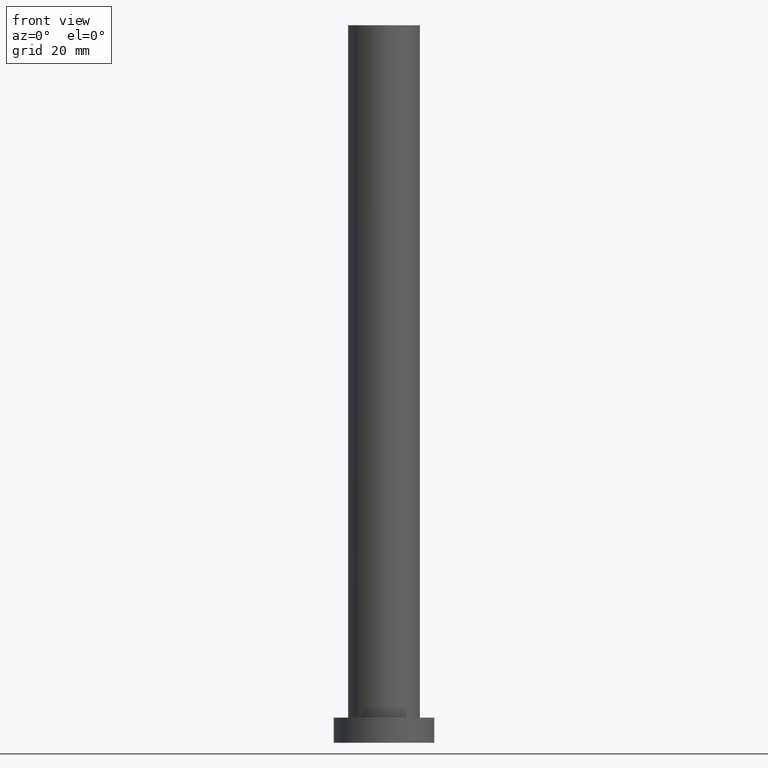
[diagram: clean part render]
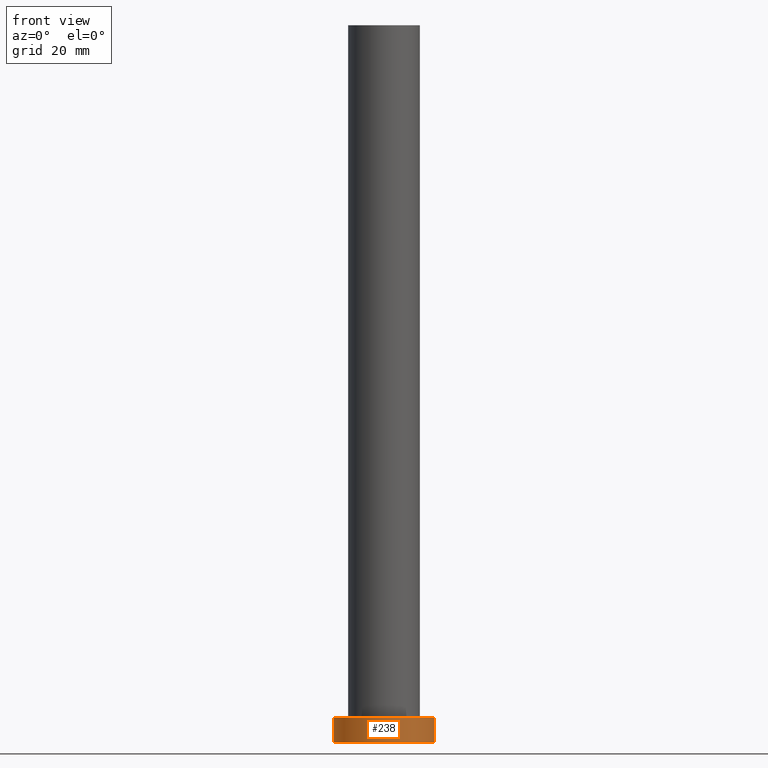
[diagram: same view with one face highlighted and labeled with its STEP entity id]
A machine part, front view. The second image highlights one B-rep face of the part: STEP entity #238.
In plain terms, the highlighted cylindrical surface (partial cylindrical patch) has radius 14 mm, axis along (-0, -0, -1).
Its self-contained STEP definition (entity closure, byte-faithful):
#20 = VERTEX_POINT ( 'NONE', #244 ) ;
#22 = LINE ( 'NONE', #208, #146 ) ;
#38 = EDGE_CURVE ( 'NONE', #143, #90, #127, .T. ) ;
#48 = CYLINDRICAL_SURFACE ( 'NONE', #194, 14.00000000000000000 ) ;
#57 = CARTESIAN_POINT ( 'NONE',  ( 14.00000000000000000, 1.714505518806294638E-15, 0.000000000000000000 ) ) ;
#62 = DIRECTION ( 'NONE',  ( -0.000000000000000000, -0.000000000000000000, -1.000000000000000000 ) ) ;
#67 = AXIS2_PLACEMENT_3D ( 'NONE', #223, #162, #210 ) ;
#77 = CARTESIAN_POINT ( 'NONE',  ( 14.00000000000000000, 1.714505518806294638E-15, 7.000000000000000000 ) ) ;
#81 = LINE ( 'NONE', #242, #85 ) ;
#85 = VECTOR ( 'NONE', #181, 1000.000000000000000 ) ;
#90 = VERTEX_POINT ( 'NONE', #57 ) ;
#99 = DIRECTION ( 'NONE',  ( 0.000000000000000000, 0.000000000000000000, 1.000000000000000000 ) ) ;
#104 = EDGE_CURVE ( 'NONE', #20, #143, #22, .T. ) ;
#112 = VERTEX_POINT ( 'NONE', #77 ) ;
#115 = CARTESIAN_POINT ( 'NONE',  ( -14.00000000000000000, 0.000000000000000000, 0.000000000000000000 ) ) ;
#122 = EDGE_CURVE ( 'NONE', #112, #90, #81, .T. ) ;
#125 = ORIENTED_EDGE ( 'NONE', *, *, #104, .T. ) ;
#127 = CIRCLE ( 'NONE', #164, 14.00000000000000000 ) ;
#130 = ORIENTED_EDGE ( 'NONE', *, *, #159, .F. ) ;
#132 = ORIENTED_EDGE ( 'NONE', *, *, #122, .F. ) ;
#143 = VERTEX_POINT ( 'NONE', #115 ) ;
#146 = VECTOR ( 'NONE', #62, 1000.000000000000000 ) ;
#156 = CARTESIAN_POINT ( 'NONE',  ( 0.000000000000000000, 0.000000000000000000, 0.000000000000000000 ) ) ;
#159 = EDGE_CURVE ( 'NONE', #20, #112, #180, .T. ) ;
#162 = DIRECTION ( 'NONE',  ( 0.000000000000000000, 0.000000000000000000, 1.000000000000000000 ) ) ;
#164 = AXIS2_PLACEMENT_3D ( 'NONE', #156, #99, #188 ) ;
#165 = CARTESIAN_POINT ( 'NONE',  ( 0.000000000000000000, 0.000000000000000000, 7.000000000000000000 ) ) ;
#167 = FACE_OUTER_BOUND ( 'NONE', #168, .T. ) ;
#168 = EDGE_LOOP ( 'NONE', ( #132, #130, #125, #215 ) ) ;
#180 = CIRCLE ( 'NONE', #67, 14.00000000000000000 ) ;
#181 = DIRECTION ( 'NONE',  ( -0.000000000000000000, -0.000000000000000000, -1.000000000000000000 ) ) ;
#188 = DIRECTION ( 'NONE',  ( 1.000000000000000000, 0.000000000000000000, 0.000000000000000000 ) ) ;
#194 = AXIS2_PLACEMENT_3D ( 'NONE', #165, #247, #213 ) ;
#208 = CARTESIAN_POINT ( 'NONE',  ( -14.00000000000000000, 0.000000000000000000, 7.000000000000000000 ) ) ;
#210 = DIRECTION ( 'NONE',  ( 1.000000000000000000, 0.000000000000000000, 0.000000000000000000 ) ) ;
#213 = DIRECTION ( 'NONE',  ( -1.000000000000000000, 0.000000000000000000, 0.000000000000000000 ) ) ;
#215 = ORIENTED_EDGE ( 'NONE', *, *, #38, .T. ) ;
#223 = CARTESIAN_POINT ( 'NONE',  ( 0.000000000000000000, 0.000000000000000000, 7.000000000000000000 ) ) ;
#238 = ADVANCED_FACE ( 'NONE', ( #167 ), #48, .T. ) ;
#242 = CARTESIAN_POINT ( 'NONE',  ( 14.00000000000000000, 1.714505518806294638E-15, 7.000000000000000000 ) ) ;
#244 = CARTESIAN_POINT ( 'NONE',  ( -14.00000000000000000, 0.000000000000000000, 7.000000000000000000 ) ) ;
#247 = DIRECTION ( 'NONE',  ( -0.000000000000000000, -0.000000000000000000, -1.000000000000000000 ) ) ;